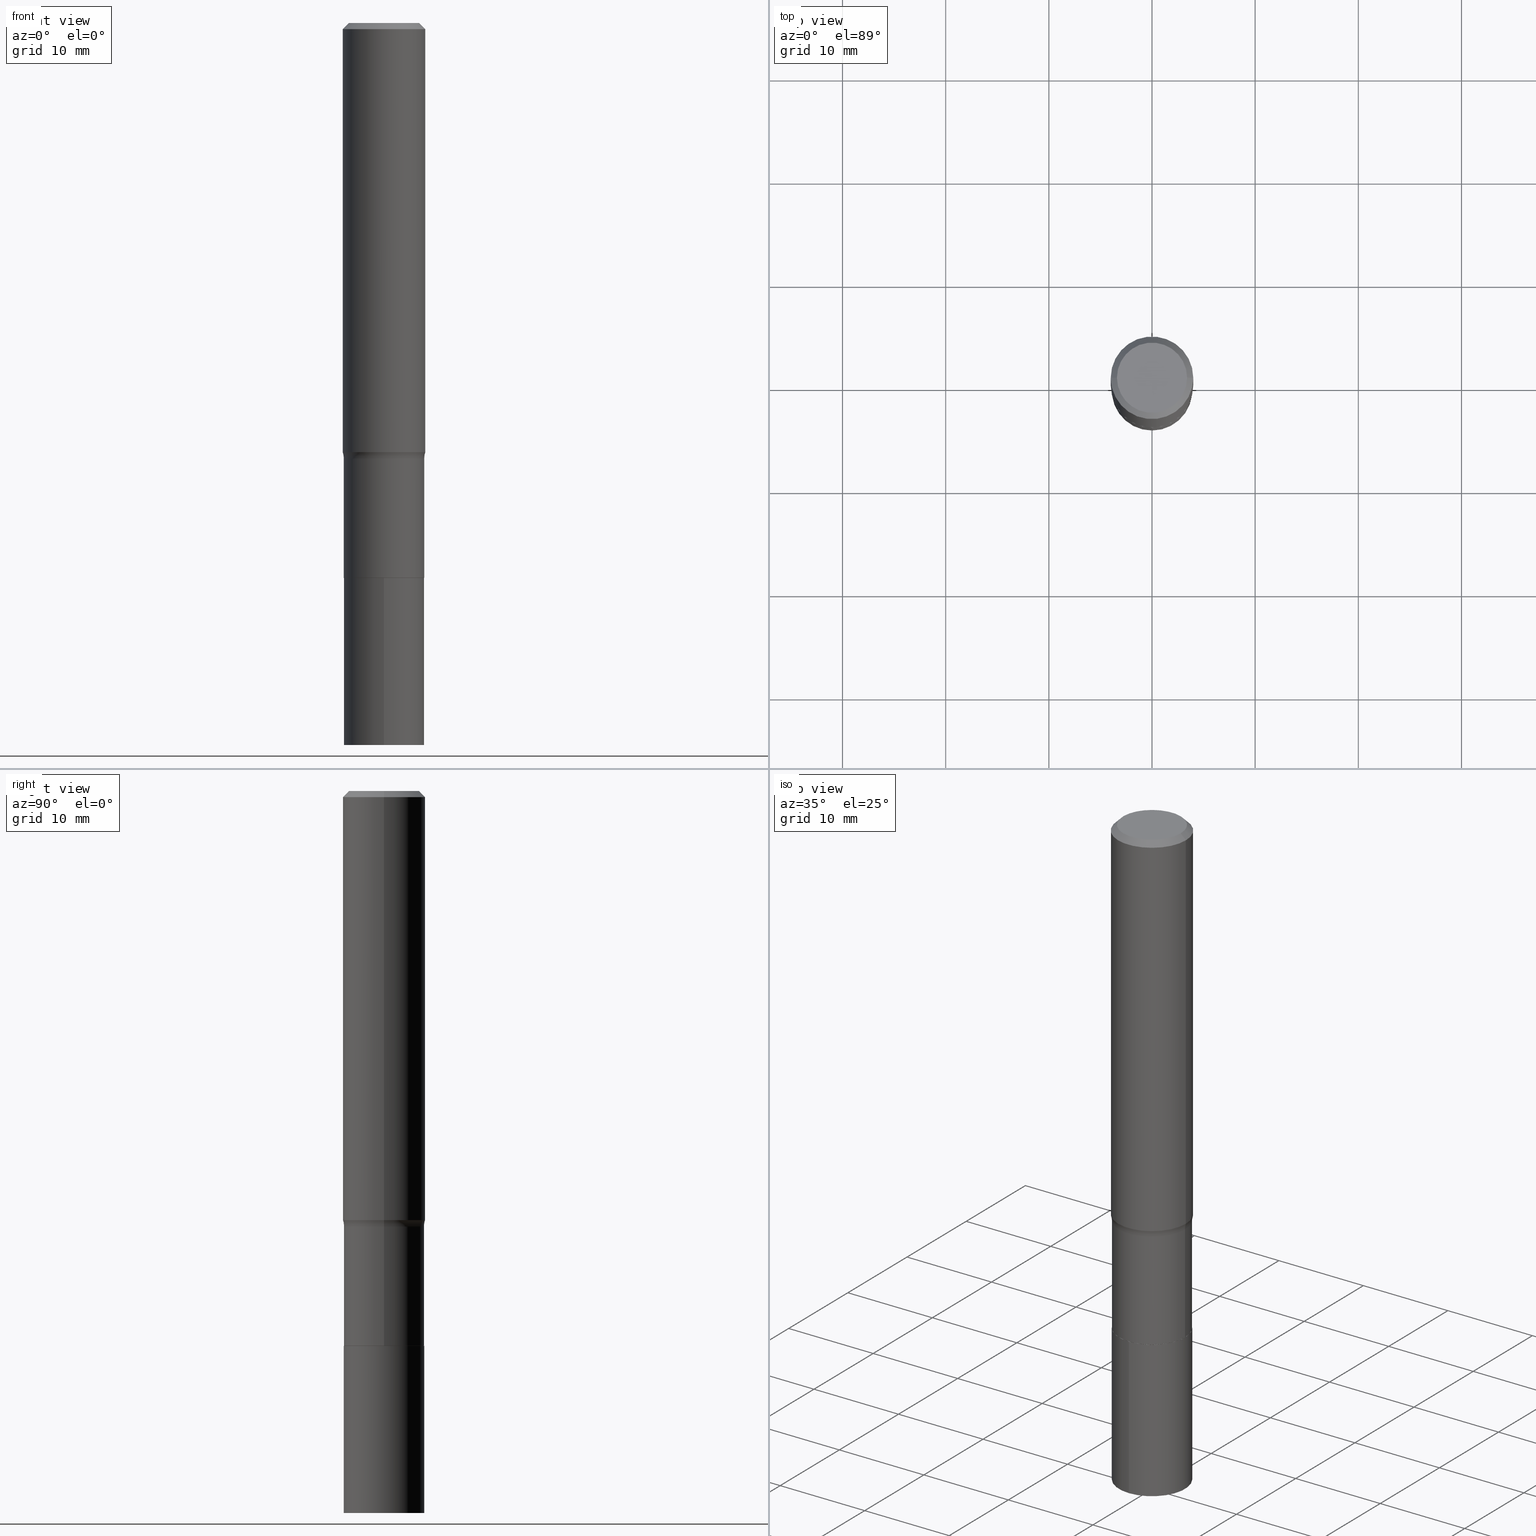
[diagram: canonical four-view strip — front | top / right | iso, engineering-drawing reading convention]
A machine part, canonical four-view strip (front | top / right | iso — engineering-drawing reading convention). The complete STEP part file that produces these views, byte-faithful:
ISO-10303-21;
HEADER;
FILE_DESCRIPTION (( 'STEP AP203' ),
    '1' );
FILE_NAME ('67125.STEP',
    '2024-04-19T15:57:45',
    ( '' ),
    ( '' ),
    'SwSTEP 2.0',
    'SolidWorks 2023',
    '' );
FILE_SCHEMA (( 'CONFIG_CONTROL_DESIGN' ));
ENDSEC;

DATA;
#1 = CARTESIAN_POINT ( 'NONE',  ( -0.1535499999999999365, -5.508210507787796111E-15, -1.662800000000000056 ) ) ;
#2 = DIRECTION ( 'NONE',  ( 1.000000000000000000, -6.982962677686265922E-15, 0.000000000000000000 ) ) ;
#3 = AXIS2_PLACEMENT_3D ( 'NONE', #63, #354, #291 ) ;
#4 = CONICAL_SURFACE ( 'NONE', #366, 0.1575000000000000011, 0.7853981633974449483 ) ;
#5 = APPROVAL ( #410, 'UNSPECIFIED' ) ;
#6 = PLANE ( 'NONE',  #300 ) ;
#7 = CYLINDRICAL_SURFACE ( 'NONE', #428, 0.1535499999999999921 ) ;
#8 = PERSON_AND_ORGANIZATION ( #246, #446 ) ;
#9 = DIRECTION ( 'NONE',  ( -2.445810877252838916E-29, 3.490991473604719712E-15, 1.000000000000000000 ) ) ;
#10 = TOROIDAL_SURFACE ( 'NONE', #203, 0.2335499999999999521, 0.08000000000000000167 ) ;
#11 = CALENDAR_DATE ( 2024, 19, 4 ) ;
#12 = DIRECTION ( 'NONE',  ( -2.445468806185136597E-29, 3.491481338843145583E-15, 1.000000000000000000 ) ) ;
#13 = APPLICATION_PROTOCOL_DEFINITION ( 'international standard', 'config_control_design', 1994, #179 ) ;
#14 = MANIFOLD_SOLID_BREP ( 'Body-Move/Copy2[2]', #46 ) ;
#15 = EDGE_CURVE ( 'NONE', #165, #241, #380, .T. ) ;
#16 = DIMENSIONAL_EXPONENTS ( 1.000000000000000000, 0.000000000000000000, 0.000000000000000000, 0.000000000000000000, 0.000000000000000000, 0.000000000000000000, 0.000000000000000000 ) ;
#17 = CIRCLE ( 'NONE', #281, 0.1575000000000000011 ) ;
#18 = SECURITY_CLASSIFICATION_LEVEL ( 'unclassified' ) ;
#19 = CIRCLE ( 'NONE', #82, 0.1535499999999999921 ) ;
#20 = CARTESIAN_POINT ( 'NONE',  ( 0.1575000000000000011, -1.182302868365756679E-15, -0.02362500000000014588 ) ) ;
#21 = CALENDAR_DATE ( 2024, 19, 4 ) ;
#22 = DIRECTION ( 'NONE',  ( 7.105427357601001859E-15, 1.000000000000000000, -3.491481338843145583E-15 ) ) ;
#23 = VERTEX_POINT ( 'NONE', #352 ) ;
#24 = EDGE_CURVE ( 'NONE', #60, #169, #453, .T. ) ;
#25 = SHAPE_DEFINITION_REPRESENTATION ( #64, #194 ) ;
#26 = CARTESIAN_POINT ( 'NONE',  ( 4.066325530924645497E-29, -5.805635170228382616E-15, -1.662800000000000056 ) ) ;
#27 = ORIENTED_EDGE ( 'NONE', *, *, #65, .F. ) ;
#28 = EDGE_CURVE ( 'NONE', #52, #271, #307, .T. ) ;
#29 = DIRECTION ( 'NONE',  ( -2.445468806185136597E-29, 3.491481338843145583E-15, 1.000000000000000000 ) ) ;
#30 = CIRCLE ( 'NONE', #334, 0.1338749999999999940 ) ;
#31 = EDGE_LOOP ( 'NONE', ( #273, #316 ) ) ;
#32 = LINE ( 'NONE', #37, #193 ) ;
#33 = DIRECTION ( 'NONE',  ( 1.000000000000000000, -6.982962677686266711E-15, 4.876176775795935793E-29 ) ) ;
#34 = ORIENTED_EDGE ( 'NONE', *, *, #358, .F. ) ;
#35 = FACE_OUTER_BOUND ( 'NONE', #88, .T. ) ;
#36 = CC_DESIGN_PERSON_AND_ORGANIZATION_ASSIGNMENT ( #402, #73, ( #235 ) ) ;
#37 = CARTESIAN_POINT ( 'NONE',  ( 0.1530499999999999916, -8.463350765355780623E-15, -2.117899999999999672 ) ) ;
#38 = FACE_OUTER_BOUND ( 'NONE', #427, .T. ) ;
#39 = CARTESIAN_POINT ( 'NONE',  ( 5.777420054612421104E-31, -8.248624663016984002E-17, -0.02362500000000014588 ) ) ;
#40 = EDGE_CURVE ( 'NONE', #52, #165, #108, .T. ) ;
#41 = FACE_OUTER_BOUND ( 'NONE', #420, .T. ) ;
#42 = ORIENTED_EDGE ( 'NONE', *, *, #258, .T. ) ;
#43 = ADVANCED_FACE ( 'NONE', ( #72 ), #143, .F. ) ;
#44 = DATE_TIME_ROLE ( 'creation_date' ) ;
#45 = CALENDAR_DATE ( 2024, 19, 4 ) ;
#46 = CLOSED_SHELL ( 'NONE', ( #425, #190, #341, #262, #195, #349, #217, #368, #404, #117, #61, #150 ) ) ;
#47 = DIRECTION ( 'NONE',  ( -6.982962677686266711E-15, -1.000000000000000000, 3.558252026915354491E-15 ) ) ;
#48 = LINE ( 'NONE', #164, #347 ) ;
#49 = PERSON_AND_ORGANIZATION_ROLE ( 'design_supplier' ) ;
#50 = DIRECTION ( 'NONE',  ( 1.000000000000000000, -6.982962677686265922E-15, 0.000000000000000000 ) ) ;
#51 = CIRCLE ( 'NONE', #440, 0.1535499999999999643 ) ;
#52 = VERTEX_POINT ( 'NONE', #67 ) ;
#53 = DATE_TIME_ROLE ( 'classification_date' ) ;
#54 = DIRECTION ( 'NONE',  ( -2.445810877252838916E-29, 3.490991473604719317E-15, 1.000000000000000000 ) ) ;
#55 = EDGE_CURVE ( 'NONE', #23, #113, #333, .T. ) ;
#56 = ORIENTED_EDGE ( 'NONE', *, *, #115, .F. ) ;
#57 = ORIENTED_EDGE ( 'NONE', *, *, #431, .T. ) ;
#58 = CARTESIAN_POINT ( 'NONE',  ( 0.000000000000000000, 0.000000000000000000, 0.000000000000000000 ) ) ;
#59 = AXIS2_PLACEMENT_3D ( 'NONE', #196, #125, #270 ) ;
#60 = VERTEX_POINT ( 'NONE', #435 ) ;
#61 = ADVANCED_FACE ( 'NONE', ( #360 ), #210, .F. ) ;
#62 = FACE_OUTER_BOUND ( 'NONE', #216, .T. ) ;
#63 = CARTESIAN_POINT ( 'NONE',  ( 5.179258384619500626E-29, -7.394608327535897484E-15, -2.117899999999999672 ) ) ;
#64 = PRODUCT_DEFINITION_SHAPE ( 'NONE', 'NONE',  #240 ) ;
#65 = EDGE_CURVE ( 'NONE', #158, #280, #260, .T. ) ;
#66 = FACE_OUTER_BOUND ( 'NONE', #128, .T. ) ;
#67 = CARTESIAN_POINT ( 'NONE',  ( -0.1575000000000001676, -4.599846118689354837E-15, -1.637972646133749377 ) ) ;
#68 = CARTESIAN_POINT ( 'NONE',  ( 5.179258384619500626E-29, -7.394608327535897484E-15, -2.117899999999999672 ) ) ;
#69 = CARTESIAN_POINT ( 'NONE',  ( -0.1575000000000000844, 1.119104808822158392E-15, -7.747322767151481189E-30 ) ) ;
#70 = UNCERTAINTY_MEASURE_WITH_UNIT (LENGTH_MEASURE( 1.000000000000000082E-05 ), #318, 'distance_accuracy_value', 'NONE');
#71 = CARTESIAN_POINT ( 'NONE',  ( -1.002970424325035327E-46, 1.431975951230899223E-32, 4.101342130344493665E-18 ) ) ;
#72 = FACE_OUTER_BOUND ( 'NONE', #346, .T. ) ;
#73 = PERSON_AND_ORGANIZATION_ROLE ( 'design_owner' ) ;
#74 = CARTESIAN_POINT ( 'NONE',  ( 5.179258384619500626E-29, -7.394608327535897484E-15, -2.117899999999999672 ) ) ;
#75 = PERSON_AND_ORGANIZATION_ROLE ( 'creator' ) ;
#76 = VECTOR ( 'NONE', #460, 39.37007874015748143 ) ;
#77 = VECTOR ( 'NONE', #429, 39.37007874015748143 ) ;
#78 = CARTESIAN_POINT ( 'NONE',  ( 0.000000000000000000, 0.000000000000000000, 0.000000000000000000 ) ) ;
#79 = MECHANICAL_CONTEXT ( 'NONE', #179, 'mechanical' ) ;
#80 = CARTESIAN_POINT ( 'NONE',  ( -1.081561332660571288E-30, -1.942836018269385033E-14, -2.755900000000000016 ) ) ;
#81 = VECTOR ( 'NONE', #93, 39.37007874015748143 ) ;
#82 = AXIS2_PLACEMENT_3D ( 'NONE', #172, #98, #397 ) ;
#83 = CARTESIAN_POINT ( 'NONE',  ( -0.1530499999999999916, -6.307122670455064012E-15, -2.117899999999999672 ) ) ;
#84 = CC_DESIGN_PERSON_AND_ORGANIZATION_ASSIGNMENT ( #405, #75, ( #436 ) ) ;
#85 = DIRECTION ( 'NONE',  ( -1.000000000000000000, 7.105427357601001859E-15, 0.000000000000000000 ) ) ;
#86 = ORIENTED_EDGE ( 'NONE', *, *, #431, .F. ) ;
#87 = DIRECTION ( 'NONE',  ( -2.445468806185136877E-29, 3.491481338843145188E-15, 1.000000000000000000 ) ) ;
#88 = EDGE_LOOP ( 'NONE', ( #135, #170, #386, #197 ) ) ;
#89 = AXIS2_PLACEMENT_3D ( 'NONE', #265, #367, #228 ) ;
#90 = EDGE_CURVE ( 'NONE', #219, #23, #32, .T. ) ;
#91 = APPLICATION_CONTEXT ( 'configuration controlled 3d designs of mechanical parts and assemblies' ) ;
#92 = CIRCLE ( 'NONE', #230, 0.1535499999999999365 ) ;
#93 = DIRECTION ( 'NONE',  ( -2.445468806185136877E-29, 3.491481338843145188E-15, 1.000000000000000000 ) ) ;
#94 = ORIENTED_EDGE ( 'NONE', *, *, #55, .T. ) ;
#95 = CC_DESIGN_PERSON_AND_ORGANIZATION_ASSIGNMENT ( #119, #345, ( #348 ) ) ;
#96 = DIRECTION ( 'NONE',  ( -2.445468806185136597E-29, 3.491481338843145583E-15, 1.000000000000000000 ) ) ;
#97 = ORIENTED_EDGE ( 'NONE', *, *, #312, .F. ) ;
#98 = DIRECTION ( 'NONE',  ( -2.445810877252838916E-29, 3.490991473604719712E-15, 1.000000000000000000 ) ) ;
#99 = EDGE_LOOP ( 'NONE', ( #94, #311, #200, #344 ) ) ;
#100 = AXIS2_PLACEMENT_3D ( 'NONE', #249, #322, #314 ) ;
#101 = CARTESIAN_POINT ( 'NONE',  ( 0.1575000000000000011, -1.163014681279185964E-15, -0.02362500000000014588 ) ) ;
#102 = LOCAL_TIME ( 11, 57, 45.00000000000000000, #238 ) ;
#103 = AXIS2_PLACEMENT_3D ( 'NONE', #78, #292, #294 ) ;
#104 = ORIENTED_EDGE ( 'NONE', *, *, #329, .F. ) ;
#105 = CARTESIAN_POINT ( 'NONE',  ( 5.179258384619500626E-29, -7.394608327535897484E-15, -2.117899999999999672 ) ) ;
#106 = DIRECTION ( 'NONE',  ( -2.445468806185136597E-29, 3.491481338843145583E-15, 1.000000000000000000 ) ) ;
#107 = CYLINDRICAL_SURFACE ( 'NONE', #204, 0.1575000000000000844 ) ;
#108 = LINE ( 'NONE', #69, #229 ) ;
#109 = CARTESIAN_POINT ( 'NONE',  ( -1.072233919158658699E-15, -0.1535500000000096232, -2.755900000000000016 ) ) ;
#110 = DIRECTION ( 'NONE',  ( 2.445810877252838916E-29, -3.490991473604719317E-15, -1.000000000000000000 ) ) ;
#111 = AXIS2_PLACEMENT_3D ( 'NONE', #283, #110, #256 ) ;
#112 = AXIS2_PLACEMENT_3D ( 'NONE', #207, #215, #144 ) ;
#113 = VERTEX_POINT ( 'NONE', #433 ) ;
#114 = DATE_AND_TIME ( #327, #399 ) ;
#115 = EDGE_CURVE ( 'NONE', #113, #23, #51, .T. ) ;
#116 = DIRECTION ( 'NONE',  ( 1.000000000000000000, -6.982962677686269077E-15, 0.000000000000000000 ) ) ;
#117 = ADVANCED_FACE ( 'NONE', ( #227 ), #6, .F. ) ;
#118 = CARTESIAN_POINT ( 'NONE',  ( 5.179258384619500626E-29, -7.394608327535897484E-15, -2.117899999999999672 ) ) ;
#119 = PERSON_AND_ORGANIZATION ( #246, #446 ) ;
#120 = ADVANCED_FACE ( 'NONE', ( #369 ), #148, .F. ) ;
#121 = CARTESIAN_POINT ( 'NONE',  ( -0.1575000000000000011, -1.781613778248682921E-15, -0.02362500000000014588 ) ) ;
#122 = VECTOR ( 'NONE', #452, 39.37007874015748143 ) ;
#123 = FACE_OUTER_BOUND ( 'NONE', #384, .T. ) ;
#124 = ORIENTED_EDGE ( 'NONE', *, *, #267, .T. ) ;
#125 = DIRECTION ( 'NONE',  ( -2.445468806185136597E-29, 3.491481338843145583E-15, 1.000000000000000000 ) ) ;
#126 = ORIENTED_EDGE ( 'NONE', *, *, #309, .F. ) ;
#127 = DIRECTION ( 'NONE',  ( -2.445468806185136597E-29, 3.491481338843145583E-15, 1.000000000000000000 ) ) ;
#128 = EDGE_LOOP ( 'NONE', ( #124, #276, #342, #426 ) ) ;
#129 = CC_DESIGN_PERSON_AND_ORGANIZATION_ASSIGNMENT ( #220, #49, ( #436 ) ) ;
#130 = CONICAL_SURFACE ( 'NONE', #355, 0.1530499999999999916, 0.7853981633975336552 ) ;
#131 = AXIS2_PLACEMENT_3D ( 'NONE', #137, #353, #33 ) ;
#132 = ORIENTED_EDGE ( 'NONE', *, *, #15, .T. ) ;
#133 = CARTESIAN_POINT ( 'NONE',  ( 0.1575000000000001676, -6.818767549247101499E-15, -1.637972646133749377 ) ) ;
#134 = ORIENTED_EDGE ( 'NONE', *, *, #24, .F. ) ;
#135 = ORIENTED_EDGE ( 'NONE', *, *, #40, .F. ) ;
#136 = CIRCLE ( 'NONE', #236, 0.08000000000000002942 ) ;
#137 = CARTESIAN_POINT ( 'NONE',  ( 0.000000000000000000, 0.000000000000000000, 0.000000000000000000 ) ) ;
#138 = APPROVAL_PERSON_ORGANIZATION ( #8, #167, #264 ) ;
#139 = ORIENTED_EDGE ( 'NONE', *, *, #267, .F. ) ;
#140 = LINE ( 'NONE', #321, #338 ) ;
#141 = EDGE_LOOP ( 'NONE', ( #459, #57, #457, #56 ) ) ;
#142 = DIRECTION ( 'NONE',  ( -2.445468806185136597E-29, 3.491481338843145583E-15, 1.000000000000000000 ) ) ;
#143 = PLANE ( 'NONE',  #111 ) ;
#144 = DIRECTION ( 'NONE',  ( -6.982962677686266711E-15, -1.000000000000000000, 3.558252026915354491E-15 ) ) ;
#145 = DIRECTION ( 'NONE',  ( 1.000000000000000000, -6.982962677686265922E-15, 4.876176775795935793E-29 ) ) ;
#146 = AXIS2_PLACEMENT_3D ( 'NONE', #385, #272, #336 ) ;
#147 = PERSON_AND_ORGANIZATION ( #246, #446 ) ;
#148 = PLANE ( 'NONE',  #268 ) ;
#149 = DIRECTION ( 'NONE',  ( 2.438088387897960049E-29, -3.491481338843145188E-15, -1.000000000000000000 ) ) ;
#150 = ADVANCED_FACE ( 'NONE', ( #412 ), #130, .T. ) ;
#151 = CARTESIAN_POINT ( 'NONE',  ( 0.2335499999999999521, -7.436506103602010414E-15, -1.662800000000000056 ) ) ;
#152 = AXIS2_PLACEMENT_3D ( 'NONE', #375, #96, #298 ) ;
#153 = PERSON_AND_ORGANIZATION ( #246, #446 ) ;
#154 = LINE ( 'NONE', #83, #363 ) ;
#155 = EDGE_LOOP ( 'NONE', ( #139, #86 ) ) ;
#156 = CIRCLE ( 'NONE', #390, 0.1575000000000001954 ) ;
#157 = AXIS2_PLACEMENT_3D ( 'NONE', #286, #434, #279 ) ;
#158 = VERTEX_POINT ( 'NONE', #293 ) ;
#159 = PERSON_AND_ORGANIZATION ( #246, #446 ) ;
#160 = CC_DESIGN_DATE_AND_TIME_ASSIGNMENT ( #340, #53, ( #348 ) ) ;
#161 = ORIENTED_EDGE ( 'NONE', *, *, #421, .T. ) ;
#162 = LINE ( 'NONE', #305, #122 ) ;
#163 = ORIENTED_EDGE ( 'NONE', *, *, #232, .T. ) ;
#164 = CARTESIAN_POINT ( 'NONE',  ( -1.072233919158674279E-15, -0.1535500000000073750, -2.117899999999999228 ) ) ;
#165 = VERTEX_POINT ( 'NONE', #121 ) ;
#166 = MANIFOLD_SOLID_BREP ( 'Body-Move/Copy2[1]', #186 ) ;
#167 = APPROVAL ( #370, 'UNSPECIFIED' ) ;
#168 = DIRECTION ( 'NONE',  ( -2.445468806185136597E-29, 3.491481338843145583E-15, 1.000000000000000000 ) ) ;
#169 = VERTEX_POINT ( 'NONE', #266 ) ;
#170 = ORIENTED_EDGE ( 'NONE', *, *, #28, .T. ) ;
#171 = AXIS2_PLACEMENT_3D ( 'NONE', #247, #214, #2 ) ;
#172 = CARTESIAN_POINT ( 'NONE',  ( 6.739685724306814341E-29, -9.621860887695710828E-15, -2.755900000000000460 ) ) ;
#173 = CC_DESIGN_APPROVAL ( #5, ( #348 ) ) ;
#174 = ORIENTED_EDGE ( 'NONE', *, *, #387, .T. ) ;
#175 = EDGE_CURVE ( 'NONE', #208, #113, #154, .T. ) ;
#176 = CARTESIAN_POINT ( 'NONE',  ( 4.066325530924645497E-29, -5.805635170228382616E-15, -1.662800000000000056 ) ) ;
#177 = EDGE_LOOP ( 'NONE', ( #126, #174, #42, #304 ) ) ;
#178 = DIRECTION ( 'NONE',  ( 1.000000000000000000, -6.982962677686266711E-15, 4.876170806578254279E-29 ) ) ;
#179 = APPLICATION_CONTEXT ( 'configuration controlled 3d designs of mechanical parts and assemblies' ) ;
#180 = ORIENTED_EDGE ( 'NONE', *, *, #396, .T. ) ;
#181 = ADVANCED_FACE ( 'NONE', ( #330 ), #7, .T. ) ;
#182 = TOROIDAL_SURFACE ( 'NONE', #152, 0.2335499999999999521, 0.08000000000000000167 ) ;
#183 =( GEOMETRIC_REPRESENTATION_CONTEXT ( 3 ) GLOBAL_UNCERTAINTY_ASSIGNED_CONTEXT ( ( #70 ) ) GLOBAL_UNIT_ASSIGNED_CONTEXT ( ( #318, #226, #365 ) ) REPRESENTATION_CONTEXT ( 'NONE', 'WORKASPACE' ) );
#184 = DIRECTION ( 'NONE',  ( -6.982962677686265922E-15, -1.000000000000000000, 3.490991473604719317E-15 ) ) ;
#185 = APPROVAL_DATE_TIME ( #295, #167 ) ;
#186 = CLOSED_SHELL ( 'NONE', ( #364, #120, #181, #43 ) ) ;
#187 = EDGE_CURVE ( 'NONE', #271, #192, #136, .T. ) ;
#188 = CARTESIAN_POINT ( 'NONE',  ( 0.1535499999999999365, -6.877869089387108762E-15, -1.662800000000000056 ) ) ;
#189 = CARTESIAN_POINT ( 'NONE',  ( 5.777420054612421104E-31, -8.248624663016984002E-17, -0.02362500000000014588 ) ) ;
#190 = ADVANCED_FACE ( 'NONE', ( #222 ), #407, .T. ) ;
#191 = DATE_AND_TIME ( #376, #261 ) ;
#192 = VERTEX_POINT ( 'NONE', #188 ) ;
#193 = VECTOR ( 'NONE', #285, 39.37007874015748143 ) ;
#194 = ADVANCED_BREP_SHAPE_REPRESENTATION ( '67125', ( #166, #14, #103 ), #183 ) ;
#195 = ADVANCED_FACE ( 'NONE', ( #413 ), #337, .T. ) ;
#196 = CARTESIAN_POINT ( 'NONE',  ( 0.000000000000000000, 0.000000000000000000, 0.000000000000000000 ) ) ;
#197 = ORIENTED_EDGE ( 'NONE', *, *, #15, .F. ) ;
#198 = COORDINATED_UNIVERSAL_TIME_OFFSET ( 5, 0, .BEHIND. ) ;
#199 = CARTESIAN_POINT ( 'NONE',  ( 0.1530499999999999916, -8.463350765355780623E-15, -2.117899999999999672 ) ) ;
#200 = ORIENTED_EDGE ( 'NONE', *, *, #396, .F. ) ;
#201 = CARTESIAN_POINT ( 'NONE',  ( -0.2335499999999999521, -4.146162610860669169E-15, -1.662800000000000056 ) ) ;
#202 = ORIENTED_EDGE ( 'NONE', *, *, #187, .F. ) ;
#203 = AXIS2_PLACEMENT_3D ( 'NONE', #26, #424, #343 ) ;
#204 = AXIS2_PLACEMENT_3D ( 'NONE', #400, #284, #205 ) ;
#205 = DIRECTION ( 'NONE',  ( 1.000000000000000000, -6.982962677686267499E-15, 4.876176775795936353E-29 ) ) ;
#206 = ORIENTED_EDGE ( 'NONE', *, *, #312, .T. ) ;
#207 = CARTESIAN_POINT ( 'NONE',  ( 5.179258384619500626E-29, -7.394608327535897484E-15, -2.117899999999999672 ) ) ;
#208 = VERTEX_POINT ( 'NONE', #277 ) ;
#209 =( LENGTH_UNIT ( ) NAMED_UNIT ( * ) SI_UNIT ( $, .METRE. ) );
#210 = PLANE ( 'NONE',  #299 ) ;
#211 = DIRECTION ( 'NONE',  ( 1.000000000000000000, -6.982962677686265133E-15, 0.000000000000000000 ) ) ;
#212 = LOCAL_TIME ( 11, 57, 45.00000000000000000, #409 ) ;
#213 = EDGE_CURVE ( 'NONE', #378, #416, #288, .T. ) ;
#214 = DIRECTION ( 'NONE',  ( -2.445468806185136597E-29, 3.491481338843145583E-15, 1.000000000000000000 ) ) ;
#215 = DIRECTION ( 'NONE',  ( -2.445810877252838916E-29, 3.490991473604719712E-15, 1.000000000000000000 ) ) ;
#216 = EDGE_LOOP ( 'NONE', ( #34, #398, #437, #132 ) ) ;
#217 = ADVANCED_FACE ( 'NONE', ( #383 ), #182, .F. ) ;
#218 = COORDINATED_UNIVERSAL_TIME_OFFSET ( 5, 0, .BEHIND. ) ;
#219 = VERTEX_POINT ( 'NONE', #199 ) ;
#220 = PERSON_AND_ORGANIZATION ( #246, #446 ) ;
#221 = AXIS2_PLACEMENT_3D ( 'NONE', #39, #106, #466 ) ;
#222 = FACE_OUTER_BOUND ( 'NONE', #319, .T. ) ;
#223 = DESIGN_CONTEXT ( 'detailed design', #91, 'design' ) ;
#224 = APPLICATION_PROTOCOL_DEFINITION ( 'international standard', 'config_control_design', 1994, #91 ) ;
#225 = DIRECTION ( 'NONE',  ( 1.000000000000000000, -6.982962677686263555E-15, 0.000000000000000000 ) ) ;
#226 =( NAMED_UNIT ( * ) PLANE_ANGLE_UNIT ( ) SI_UNIT ( $, .RADIAN. ) );
#227 = FACE_OUTER_BOUND ( 'NONE', #451, .T. ) ;
#228 = DIRECTION ( 'NONE',  ( -1.000000000000000000, 6.982962677686265922E-15, 0.000000000000000000 ) ) ;
#229 = VECTOR ( 'NONE', #257, 39.37007874015748143 ) ;
#230 = AXIS2_PLACEMENT_3D ( 'NONE', #176, #242, #211 ) ;
#231 = CARTESIAN_POINT ( 'NONE',  ( 1.091038370759701227E-15, 0.1535499999999926091, -2.117900000000000560 ) ) ;
#232 = EDGE_CURVE ( 'NONE', #52, #461, #411, .T. ) ;
#233 = CARTESIAN_POINT ( 'NONE',  ( 5.179258384619500626E-29, -7.394608327535897484E-15, -2.117899999999999672 ) ) ;
#234 = ORIENTED_EDGE ( 'NONE', *, *, #463, .T. ) ;
#235 = PRODUCT ( '67125', '67125', '', ( #79 ) ) ;
#236 = AXIS2_PLACEMENT_3D ( 'NONE', #151, #406, #116 ) ;
#237 = EDGE_LOOP ( 'NONE', ( #393, #97, #447, #180 ) ) ;
#238 = COORDINATED_UNIVERSAL_TIME_OFFSET ( 5, 0, .BEHIND. ) ;
#239 = LINE ( 'NONE', #422, #445 ) ;
#240 = PRODUCT_DEFINITION ( 'UNKNOWN', '', #436, #223 ) ;
#241 = VERTEX_POINT ( 'NONE', #20 ) ;
#242 = DIRECTION ( 'NONE',  ( -2.445468806185136597E-29, 3.491481338843145583E-15, 1.000000000000000000 ) ) ;
#243 = ORIENTED_EDGE ( 'NONE', *, *, #40, .T. ) ;
#244 = CC_DESIGN_APPROVAL ( #167, ( #240 ) ) ;
#245 = CYLINDRICAL_SURFACE ( 'NONE', #131, 0.1535499999999999643 ) ;
#246 = PERSON ( 'UNSPECIFIED', 'UNSPECIFIED', 'UNSPECIFIED', ('UNSPECIFIED'), ('UNSPECIFIED'), ('UNSPECIFIED') ) ;
#247 = CARTESIAN_POINT ( 'NONE',  ( 4.005611011504608919E-29, -5.718950927511513230E-15, -1.637972646133749377 ) ) ;
#248 = DIRECTION ( 'NONE',  ( 1.000000000000000000, -6.982962677686265133E-15, 0.000000000000000000 ) ) ;
#249 = CARTESIAN_POINT ( 'NONE',  ( -1.002970424325035327E-46, 1.431975951230899223E-32, 4.101342130344493665E-18 ) ) ;
#250 = APPROVAL ( #438, 'UNSPECIFIED' ) ;
#251 = DIRECTION ( 'NONE',  ( -6.982962677686266711E-15, -1.000000000000000000, 3.558252026915354491E-15 ) ) ;
#252 = CARTESIAN_POINT ( 'NONE',  ( 5.178035650216407825E-29, -7.392862586866475192E-15, -2.117399999999999949 ) ) ;
#253 = FACE_OUTER_BOUND ( 'NONE', #339, .T. ) ;
#254 = CIRCLE ( 'NONE', #157, 0.1530499999999999916 ) ;
#255 = EDGE_CURVE ( 'NONE', #113, #461, #450, .T. ) ;
#256 = DIRECTION ( 'NONE',  ( 6.982962677686265922E-15, 1.000000000000000000, -3.490991473604719317E-15 ) ) ;
#257 = DIRECTION ( 'NONE',  ( -2.445468806185136877E-29, 3.491481338843145188E-15, 1.000000000000000000 ) ) ;
#258 = EDGE_CURVE ( 'NONE', #378, #158, #48, .T. ) ;
#259 = APPROVAL_DATE_TIME ( #114, #250 ) ;
#260 = CIRCLE ( 'NONE', #3, 0.1535499999999999921 ) ;
#261 = LOCAL_TIME ( 11, 57, 45.00000000000000000, #198 ) ;
#262 = ADVANCED_FACE ( 'NONE', ( #123 ), #10, .F. ) ;
#263 = DIRECTION ( 'NONE',  ( -2.445810877252838916E-29, 3.490991473604719317E-15, 1.000000000000000000 ) ) ;
#264 = APPROVAL_ROLE ( '' ) ;
#265 = CARTESIAN_POINT ( 'NONE',  ( 5.777420054612421104E-31, -8.248624663016984002E-17, -0.02362500000000014588 ) ) ;
#266 = CARTESIAN_POINT ( 'NONE',  ( -0.1338749999999999940, 9.760872517903331886E-16, 4.101342130337811459E-18 ) ) ;
#267 = EDGE_CURVE ( 'NONE', #219, #208, #326, .T. ) ;
#268 = AXIS2_PLACEMENT_3D ( 'NONE', #80, #263, #184 ) ;
#269 = ORIENTED_EDGE ( 'NONE', *, *, #379, .T. ) ;
#270 = DIRECTION ( 'NONE',  ( 1.000000000000000000, -6.982962677686266711E-15, 4.876176775795935793E-29 ) ) ;
#271 = VERTEX_POINT ( 'NONE', #133 ) ;
#272 = DIRECTION ( 'NONE',  ( -2.445810877252838916E-29, 3.490991473604719712E-15, 1.000000000000000000 ) ) ;
#273 = ORIENTED_EDGE ( 'NONE', *, *, #213, .F. ) ;
#274 = APPROVAL_PERSON_ORGANIZATION ( #159, #5, #296 ) ;
#275 = CARTESIAN_POINT ( 'NONE',  ( 4.005611011504608919E-29, -5.718950927511513230E-15, -1.637972646133749377 ) ) ;
#276 = ORIENTED_EDGE ( 'NONE', *, *, #175, .T. ) ;
#277 = CARTESIAN_POINT ( 'NONE',  ( -0.1530499999999999916, -6.304473443280952811E-15, -2.117899999999999672 ) ) ;
#278 = ORIENTED_EDGE ( 'NONE', *, *, #65, .T. ) ;
#279 = DIRECTION ( 'NONE',  ( 1.000000000000000000, -6.982962677686265922E-15, 0.000000000000000000 ) ) ;
#280 = VERTEX_POINT ( 'NONE', #231 ) ;
#281 = AXIS2_PLACEMENT_3D ( 'NONE', #189, #29, #310 ) ;
#282 = DIRECTION ( 'NONE',  ( -2.445468806185136597E-29, 3.491481338843145583E-15, 1.000000000000000000 ) ) ;
#283 = CARTESIAN_POINT ( 'NONE',  ( 5.179258384619500626E-29, -7.394608327535897484E-15, -2.117899999999999672 ) ) ;
#284 = DIRECTION ( 'NONE',  ( -2.445468806185136597E-29, 3.491481338843145583E-15, 1.000000000000000000 ) ) ;
#285 = DIRECTION ( 'NONE',  ( 0.7071067811866078578, -2.468850131082888544E-15, 0.7071067811864871766 ) ) ;
#286 = CARTESIAN_POINT ( 'NONE',  ( 5.179258384619500626E-29, -7.394608327535897484E-15, -2.117899999999999672 ) ) ;
#287 = DIRECTION ( 'NONE',  ( 1.000000000000000000, -6.982962677686263555E-15, 0.000000000000000000 ) ) ;
#288 = CIRCLE ( 'NONE', #146, 0.1535499999999999921 ) ;
#289 = CC_DESIGN_DATE_AND_TIME_ASSIGNMENT ( #361, #44, ( #240 ) ) ;
#290 = CYLINDRICAL_SURFACE ( 'NONE', #328, 0.1535499999999999921 ) ;
#291 = DIRECTION ( 'NONE',  ( -6.982962677686266711E-15, -1.000000000000000000, 3.558252026915354491E-15 ) ) ;
#292 = DIRECTION ( 'NONE',  ( 0.000000000000000000, 0.000000000000000000, 1.000000000000000000 ) ) ;
#293 = CARTESIAN_POINT ( 'NONE',  ( -1.072233919158674279E-15, -0.1535500000000073750, -2.117899999999999228 ) ) ;
#294 = DIRECTION ( 'NONE',  ( 1.000000000000000000, 0.000000000000000000, 0.000000000000000000 ) ) ;
#295 = DATE_AND_TIME ( #45, #441 ) ;
#296 = APPROVAL_ROLE ( '' ) ;
#297 = CARTESIAN_POINT ( 'NONE',  ( -5.014852121625176635E-47, 7.159879756154496113E-33, 2.050671065172246833E-18 ) ) ;
#298 = DIRECTION ( 'NONE',  ( 1.000000000000000000, -6.982962677686267499E-15, 4.883557194083113462E-29 ) ) ;
#299 = AXIS2_PLACEMENT_3D ( 'NONE', #74, #325, #145 ) ;
#300 = AXIS2_PLACEMENT_3D ( 'NONE', #297, #149, #444 ) ;
#301 = CIRCLE ( 'NONE', #112, 0.1535499999999999921 ) ;
#302 = ORIENTED_EDGE ( 'NONE', *, *, #258, .F. ) ;
#303 = APPROVAL_DATE_TIME ( #191, #5 ) ;
#304 = ORIENTED_EDGE ( 'NONE', *, *, #463, .F. ) ;
#305 = CARTESIAN_POINT ( 'NONE',  ( 1.091038370759685449E-15, 0.1535499999999926091, -2.117900000000000560 ) ) ;
#306 = ORIENTED_EDGE ( 'NONE', *, *, #320, .T. ) ;
#307 = CIRCLE ( 'NONE', #171, 0.1575000000000001954 ) ;
#308 = CONICAL_SURFACE ( 'NONE', #374, 0.1530499999999999916, 0.7853981633975336552 ) ;
#309 = EDGE_CURVE ( 'NONE', #416, #280, #162, .T. ) ;
#310 = DIRECTION ( 'NONE',  ( 1.000000000000000000, -6.982962677686265922E-15, 0.000000000000000000 ) ) ;
#311 = ORIENTED_EDGE ( 'NONE', *, *, #255, .T. ) ;
#312 = EDGE_CURVE ( 'NONE', #271, #52, #156, .T. ) ;
#313 = DIRECTION ( 'NONE',  ( 2.445468806185136597E-29, -3.491481338843145583E-15, -1.000000000000000000 ) ) ;
#314 = DIRECTION ( 'NONE',  ( 1.000000000000000000, -6.982962677686266711E-15, 4.876170806578254279E-29 ) ) ;
#315 = LENGTH_MEASURE_WITH_UNIT ( LENGTH_MEASURE( 0.02539999999999999897 ), #209 );
#316 = ORIENTED_EDGE ( 'NONE', *, *, #387, .F. ) ;
#317 = CC_DESIGN_SECURITY_CLASSIFICATION ( #348, ( #436 ) ) ;
#318 =( CONVERSION_BASED_UNIT ( 'INCH', #315 ) LENGTH_UNIT ( ) NAMED_UNIT ( #16 ) );
#319 = EDGE_LOOP ( 'NONE', ( #134, #401, #423, #382 ) ) ;
#320 = EDGE_CURVE ( 'NONE', #23, #192, #239, .T. ) ;
#321 = CARTESIAN_POINT ( 'NONE',  ( -0.1575000000000000011, 1.017330375105417098E-15, -0.02362500000000014588 ) ) ;
#322 = DIRECTION ( 'NONE',  ( -2.445468806185136597E-29, 3.491481338843145583E-15, 1.000000000000000000 ) ) ;
#323 = PRODUCT_RELATED_PRODUCT_CATEGORY ( 'detail', '', ( #235 ) ) ;
#324 = DIRECTION ( 'NONE',  ( -1.000000000000000000, 6.982962677686265922E-15, 0.000000000000000000 ) ) ;
#325 = DIRECTION ( 'NONE',  ( -2.438088387897960049E-29, 3.491481338843145188E-15, 1.000000000000000000 ) ) ;
#326 = CIRCLE ( 'NONE', #462, 0.1530499999999999916 ) ;
#327 = CALENDAR_DATE ( 2024, 19, 4 ) ;
#328 = AXIS2_PLACEMENT_3D ( 'NONE', #105, #392, #251 ) ;
#329 = EDGE_CURVE ( 'NONE', #241, #165, #17, .T. ) ;
#330 = FACE_OUTER_BOUND ( 'NONE', #177, .T. ) ;
#331 = EDGE_CURVE ( 'NONE', #271, #241, #448, .T. ) ;
#332 = PERSON_AND_ORGANIZATION_ROLE ( 'creator' ) ;
#333 = CIRCLE ( 'NONE', #372, 0.1535499999999999643 ) ;
#334 = AXIS2_PLACEMENT_3D ( 'NONE', #71, #168, #178 ) ;
#335 = EDGE_CURVE ( 'NONE', #169, #165, #140, .T. ) ;
#336 = DIRECTION ( 'NONE',  ( -6.982962677686266711E-15, -1.000000000000000000, 3.558252026915354491E-15 ) ) ;
#337 = CYLINDRICAL_SURFACE ( 'NONE', #59, 0.1535499999999999643 ) ;
#338 = VECTOR ( 'NONE', #465, 39.37007874015748143 ) ;
#339 = EDGE_LOOP ( 'NONE', ( #414, #403, #306, #389 ) ) ;
#340 = DATE_AND_TIME ( #21, #102 ) ;
#341 = ADVANCED_FACE ( 'NONE', ( #41 ), #388, .T. ) ;
#342 = ORIENTED_EDGE ( 'NONE', *, *, #55, .F. ) ;
#343 = DIRECTION ( 'NONE',  ( 1.000000000000000000, -6.982962677686267499E-15, 4.883557194083113462E-29 ) ) ;
#344 = ORIENTED_EDGE ( 'NONE', *, *, #320, .F. ) ;
#345 = PERSON_AND_ORGANIZATION_ROLE ( 'classification_officer' ) ;
#346 = EDGE_LOOP ( 'NONE', ( #278, #234 ) ) ;
#347 = VECTOR ( 'NONE', #54, 39.37007874015748143 ) ;
#348 = SECURITY_CLASSIFICATION ( '', '', #18 ) ;
#349 = ADVANCED_FACE ( 'NONE', ( #253 ), #245, .T. ) ;
#350 = CARTESIAN_POINT ( 'NONE',  ( 5.777420054612421104E-31, -8.248624663016984002E-17, -0.02362500000000014588 ) ) ;
#351 = ORIENTED_EDGE ( 'NONE', *, *, #309, .T. ) ;
#352 = CARTESIAN_POINT ( 'NONE',  ( 0.1535499999999999643, -8.465096506025201338E-15, -2.117399999999999949 ) ) ;
#353 = DIRECTION ( 'NONE',  ( -2.445468806185136597E-29, 3.491481338843145583E-15, 1.000000000000000000 ) ) ;
#354 = DIRECTION ( 'NONE',  ( -2.445810877252838916E-29, 3.490991473604719712E-15, 1.000000000000000000 ) ) ;
#355 = AXIS2_PLACEMENT_3D ( 'NONE', #362, #12, #373 ) ;
#356 = DIRECTION ( 'NONE',  ( 1.000000000000000000, -6.982962677686267499E-15, 4.876176775795936353E-29 ) ) ;
#357 = DIRECTION ( 'NONE',  ( -2.445468806185136597E-29, 3.491481338843145583E-15, 1.000000000000000000 ) ) ;
#358 = EDGE_CURVE ( 'NONE', #60, #241, #359, .T. ) ;
#359 = LINE ( 'NONE', #101, #77 ) ;
#360 = FACE_OUTER_BOUND ( 'NONE', #155, .T. ) ;
#361 = DATE_AND_TIME ( #11, #212 ) ;
#362 = CARTESIAN_POINT ( 'NONE',  ( 5.179258384619500626E-29, -7.394608327535897484E-15, -2.117899999999999672 ) ) ;
#363 = VECTOR ( 'NONE', #439, 39.37007874015748143 ) ;
#364 = ADVANCED_FACE ( 'NONE', ( #38 ), #290, .T. ) ;
#365 =( NAMED_UNIT ( * ) SI_UNIT ( $, .STERADIAN. ) SOLID_ANGLE_UNIT ( ) );
#366 = AXIS2_PLACEMENT_3D ( 'NONE', #350, #313, #324 ) ;
#367 = DIRECTION ( 'NONE',  ( 2.445468806185136597E-29, -3.491481338843145583E-15, -1.000000000000000000 ) ) ;
#368 = ADVANCED_FACE ( 'NONE', ( #35 ), #107, .T. ) ;
#369 = FACE_OUTER_BOUND ( 'NONE', #31, .T. ) ;
#370 = APPROVAL_STATUS ( 'not_yet_approved' ) ;
#371 = COORDINATED_UNIVERSAL_TIME_OFFSET ( 5, 0, .BEHIND. ) ;
#372 = AXIS2_PLACEMENT_3D ( 'NONE', #395, #357, #287 ) ;
#373 = DIRECTION ( 'NONE',  ( 1.000000000000000000, -6.982962677686265922E-15, 0.000000000000000000 ) ) ;
#374 = AXIS2_PLACEMENT_3D ( 'NONE', #68, #142, #458 ) ;
#375 = CARTESIAN_POINT ( 'NONE',  ( 4.066325530924645497E-29, -5.805635170228382616E-15, -1.662800000000000056 ) ) ;
#376 = CALENDAR_DATE ( 2024, 19, 4 ) ;
#377 = DIRECTION ( 'NONE',  ( 1.000000000000000000, -6.982962677686265922E-15, 0.000000000000000000 ) ) ;
#378 = VERTEX_POINT ( 'NONE', #109 ) ;
#379 = EDGE_CURVE ( 'NONE', #169, #60, #30, .T. ) ;
#380 = CIRCLE ( 'NONE', #221, 0.1575000000000000011 ) ;
#381 = CIRCLE ( 'NONE', #391, 0.1535499999999999365 ) ;
#382 = ORIENTED_EDGE ( 'NONE', *, *, #335, .F. ) ;
#383 = FACE_OUTER_BOUND ( 'NONE', #237, .T. ) ;
#384 = EDGE_LOOP ( 'NONE', ( #468, #163, #161, #202 ) ) ;
#385 = CARTESIAN_POINT ( 'NONE',  ( 6.739685724306814341E-29, -9.621860887695710828E-15, -2.755900000000000460 ) ) ;
#386 = ORIENTED_EDGE ( 'NONE', *, *, #331, .T. ) ;
#387 = EDGE_CURVE ( 'NONE', #416, #378, #19, .T. ) ;
#388 = CYLINDRICAL_SURFACE ( 'NONE', #464, 0.1575000000000000844 ) ;
#389 = ORIENTED_EDGE ( 'NONE', *, *, #421, .F. ) ;
#390 = AXIS2_PLACEMENT_3D ( 'NONE', #275, #415, #50 ) ;
#391 = AXIS2_PLACEMENT_3D ( 'NONE', #394, #282, #248 ) ;
#392 = DIRECTION ( 'NONE',  ( -2.445810877252838916E-29, 3.490991473604719712E-15, 1.000000000000000000 ) ) ;
#393 = ORIENTED_EDGE ( 'NONE', *, *, #232, .F. ) ;
#394 = CARTESIAN_POINT ( 'NONE',  ( 4.066325530924645497E-29, -5.805635170228382616E-15, -1.662800000000000056 ) ) ;
#395 = CARTESIAN_POINT ( 'NONE',  ( 5.178035650216407825E-29, -7.392862586866475192E-15, -2.117399999999999949 ) ) ;
#396 = EDGE_CURVE ( 'NONE', #192, #461, #92, .T. ) ;
#397 = DIRECTION ( 'NONE',  ( -6.982962677686266711E-15, -1.000000000000000000, 3.558252026915354491E-15 ) ) ;
#398 = ORIENTED_EDGE ( 'NONE', *, *, #379, .F. ) ;
#399 = LOCAL_TIME ( 11, 57, 45.00000000000000000, #371 ) ;
#400 = CARTESIAN_POINT ( 'NONE',  ( 0.000000000000000000, 0.000000000000000000, 0.000000000000000000 ) ) ;
#401 = ORIENTED_EDGE ( 'NONE', *, *, #358, .T. ) ;
#402 = PERSON_AND_ORGANIZATION ( #246, #446 ) ;
#403 = ORIENTED_EDGE ( 'NONE', *, *, #115, .T. ) ;
#404 = ADVANCED_FACE ( 'NONE', ( #62 ), #4, .T. ) ;
#405 = PERSON_AND_ORGANIZATION ( #246, #446 ) ;
#406 = DIRECTION ( 'NONE',  ( -6.982962677686266711E-15, -1.000000000000000000, 3.491481338843145583E-15 ) ) ;
#407 = CONICAL_SURFACE ( 'NONE', #89, 0.1575000000000000011, 0.7853981633974449483 ) ;
#408 = APPROVAL_PERSON_ORGANIZATION ( #153, #250, #442 ) ;
#409 = COORDINATED_UNIVERSAL_TIME_OFFSET ( 5, 0, .BEHIND. ) ;
#410 = APPROVAL_STATUS ( 'not_yet_approved' ) ;
#411 = CIRCLE ( 'NONE', #419, 0.08000000000000002942 ) ;
#412 = FACE_OUTER_BOUND ( 'NONE', #141, .T. ) ;
#413 = FACE_OUTER_BOUND ( 'NONE', #99, .T. ) ;
#414 = ORIENTED_EDGE ( 'NONE', *, *, #255, .F. ) ;
#415 = DIRECTION ( 'NONE',  ( -2.445468806185136597E-29, 3.491481338843145583E-15, 1.000000000000000000 ) ) ;
#416 = VERTEX_POINT ( 'NONE', #467 ) ;
#417 = CC_DESIGN_PERSON_AND_ORGANIZATION_ASSIGNMENT ( #147, #332, ( #240 ) ) ;
#418 = CARTESIAN_POINT ( 'NONE',  ( -0.1535499999999999643, 1.091038370759633582E-15, -7.553024831086406471E-30 ) ) ;
#419 = AXIS2_PLACEMENT_3D ( 'NONE', #201, #22, #85 ) ;
#420 = EDGE_LOOP ( 'NONE', ( #206, #243, #104, #430 ) ) ;
#421 = EDGE_CURVE ( 'NONE', #461, #192, #381, .T. ) ;
#422 = CARTESIAN_POINT ( 'NONE',  ( 0.1535499999999999643, -1.072233919158725949E-15, 7.487369439234657779E-30 ) ) ;
#423 = ORIENTED_EDGE ( 'NONE', *, *, #329, .T. ) ;
#424 = DIRECTION ( 'NONE',  ( -2.445468806185136597E-29, 3.491481338843145583E-15, 1.000000000000000000 ) ) ;
#425 = ADVANCED_FACE ( 'NONE', ( #66 ), #308, .T. ) ;
#426 = ORIENTED_EDGE ( 'NONE', *, *, #90, .F. ) ;
#427 = EDGE_LOOP ( 'NONE', ( #455, #351, #27, #302 ) ) ;
#428 = AXIS2_PLACEMENT_3D ( 'NONE', #118, #9, #47 ) ;
#429 = DIRECTION ( 'NONE',  ( 0.7071067811865451302, -7.319954787623248157E-15, -0.7071067811865499042 ) ) ;
#430 = ORIENTED_EDGE ( 'NONE', *, *, #331, .F. ) ;
#431 = EDGE_CURVE ( 'NONE', #208, #219, #254, .T. ) ;
#432 = DIRECTION ( 'NONE',  ( -2.445468806185136597E-29, 3.491481338843145583E-15, 1.000000000000000000 ) ) ;
#433 = CARTESIAN_POINT ( 'NONE',  ( -0.1535499999999999921, -5.508210507787796111E-15, -2.117399999999999949 ) ) ;
#434 = DIRECTION ( 'NONE',  ( -2.445468806185136597E-29, 3.491481338843145583E-15, 1.000000000000000000 ) ) ;
#435 = CARTESIAN_POINT ( 'NONE',  ( 0.1338749999999999940, -1.040731925365424925E-15, 4.101342130351401591E-18 ) ) ;
#436 = PRODUCT_DEFINITION_FORMATION_WITH_SPECIFIED_SOURCE ( 'ANY', '', #235, .NOT_KNOWN. ) ;
#437 = ORIENTED_EDGE ( 'NONE', *, *, #335, .T. ) ;
#438 = APPROVAL_STATUS ( 'not_yet_approved' ) ;
#439 = DIRECTION ( 'NONE',  ( -0.7071067811866078578, 7.493145998870571886E-15, 0.7071067811864871766 ) ) ;
#440 = AXIS2_PLACEMENT_3D ( 'NONE', #252, #443, #225 ) ;
#441 = LOCAL_TIME ( 11, 57, 45.00000000000000000, #218 ) ;
#442 = APPROVAL_ROLE ( '' ) ;
#443 = DIRECTION ( 'NONE',  ( -2.445468806185136597E-29, 3.491481338843145583E-15, 1.000000000000000000 ) ) ;
#444 = DIRECTION ( 'NONE',  ( -1.000000000000000000, 6.982962677686265922E-15, -4.876176775795935793E-29 ) ) ;
#445 = VECTOR ( 'NONE', #87, 39.37007874015748143 ) ;
#446 = ORGANIZATION ( 'UNSPECIFIED', 'UNSPECIFIED', '' ) ;
#447 = ORIENTED_EDGE ( 'NONE', *, *, #187, .T. ) ;
#448 = LINE ( 'NONE', #456, #76 ) ;
#449 = ORIENTED_EDGE ( 'NONE', *, *, #24, .T. ) ;
#450 = LINE ( 'NONE', #418, #81 ) ;
#451 = EDGE_LOOP ( 'NONE', ( #269, #449 ) ) ;
#452 = DIRECTION ( 'NONE',  ( -2.445810877252838916E-29, 3.490991473604719317E-15, 1.000000000000000000 ) ) ;
#453 = CIRCLE ( 'NONE', #100, 0.1338749999999999940 ) ;
#454 = CC_DESIGN_APPROVAL ( #250, ( #436 ) ) ;
#455 = ORIENTED_EDGE ( 'NONE', *, *, #213, .T. ) ;
#456 = CARTESIAN_POINT ( 'NONE',  ( 0.1575000000000000844, -1.099816621735587677E-15, 7.679978421878603638E-30 ) ) ;
#457 = ORIENTED_EDGE ( 'NONE', *, *, #90, .T. ) ;
#458 = DIRECTION ( 'NONE',  ( 1.000000000000000000, -6.982962677686265922E-15, 0.000000000000000000 ) ) ;
#459 = ORIENTED_EDGE ( 'NONE', *, *, #175, .F. ) ;
#460 = DIRECTION ( 'NONE',  ( -2.445468806185136877E-29, 3.491481338843145188E-15, 1.000000000000000000 ) ) ;
#461 = VERTEX_POINT ( 'NONE', #1 ) ;
#462 = AXIS2_PLACEMENT_3D ( 'NONE', #233, #127, #377 ) ;
#463 = EDGE_CURVE ( 'NONE', #280, #158, #301, .T. ) ;
#464 = AXIS2_PLACEMENT_3D ( 'NONE', #58, #432, #356 ) ;
#465 = DIRECTION ( 'NONE',  ( -0.7071067811865451302, 2.468850131082231817E-15, -0.7071067811865499042 ) ) ;
#466 = DIRECTION ( 'NONE',  ( 1.000000000000000000, -6.982962677686265922E-15, 0.000000000000000000 ) ) ;
#467 = CARTESIAN_POINT ( 'NONE',  ( 1.091038370759693141E-15, 0.1535499999999903609, -2.755900000000000905 ) ) ;
#468 = ORIENTED_EDGE ( 'NONE', *, *, #28, .F. ) ;
ENDSEC;
END-ISO-10303-21;
